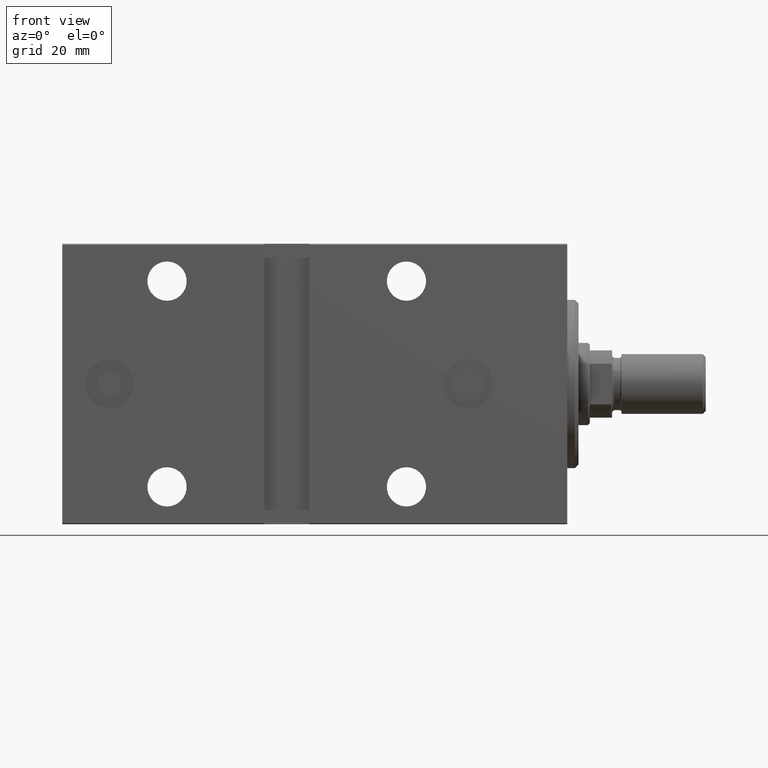
[diagram: clean part render]
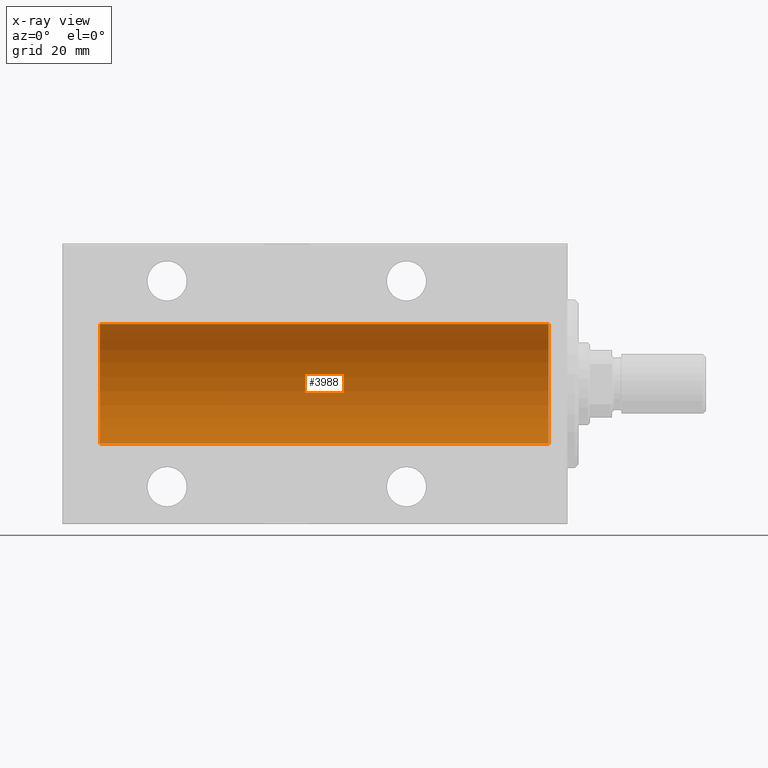
[diagram: x-ray — body ghosted, one internal face saturated and labeled with its STEP entity id]
A machine part, front view, then the same camera in x-ray: the body is ghosted and one INTERNAL B-rep face — a face not visible from any outside direction — is saturated and labeled: STEP entity #3988.
In plain terms, the highlighted cylindrical surface (partial cylindrical patch) has radius 16 mm, axis along (1, 0, -0).
Its self-contained STEP definition (entity closure, byte-faithful):
#444 = EDGE_CURVE ( 'NONE', #43288, #31007, #19442, .T. ) ;
#580 = EDGE_LOOP ( 'NONE', ( #4627, #18999, #40880, #35549 ) ) ;
#602 = VERTEX_POINT ( 'NONE', #18225 ) ;
#3988 = ADVANCED_FACE ( 'NONE', ( #16061 ), #19343, .F. ) ;
#4627 = ORIENTED_EDGE ( 'NONE', *, *, #28313, .F. ) ;
#5176 = CARTESIAN_POINT ( 'NONE',  ( 125.0000000000000000, 1.959434878635765131E-15, -16.00000000000000000 ) ) ;
#5550 = CARTESIAN_POINT ( 'NONE',  ( 125.0000000000000000, 0.000000000000000000, 0.000000000000000000 ) ) ;
#7938 = EDGE_CURVE ( 'NONE', #602, #43288, #38445, .T. ) ;
#10088 = CARTESIAN_POINT ( 'NONE',  ( 5.000000000000004441, 0.000000000000000000, 16.00000000000000000 ) ) ;
#11247 = EDGE_CURVE ( 'NONE', #14614, #31007, #19021, .T. ) ;
#11856 = CIRCLE ( 'NONE', #37029, 16.00000000000000000 ) ;
#12557 = DIRECTION ( 'NONE',  ( -1.000000000000000000, 0.000000000000000000, 0.000000000000000000 ) ) ;
#14614 = VERTEX_POINT ( 'NONE', #39159 ) ;
#15258 = DIRECTION ( 'NONE',  ( -1.000000000000000000, -0.000000000000000000, -0.000000000000000000 ) ) ;
#16061 = FACE_OUTER_BOUND ( 'NONE', #580, .T. ) ;
#17349 = AXIS2_PLACEMENT_3D ( 'NONE', #28119, #35536, #38602 ) ;
#18225 = CARTESIAN_POINT ( 'NONE',  ( 125.0000000000000000, 1.959434878635765131E-15, -16.00000000000000000 ) ) ;
#18910 = DIRECTION ( 'NONE',  ( 0.000000000000000000, 0.000000000000000000, 1.000000000000000000 ) ) ;
#18999 = ORIENTED_EDGE ( 'NONE', *, *, #7938, .T. ) ;
#19021 = LINE ( 'NONE', #28866, #29714 ) ;
#19343 = CYLINDRICAL_SURFACE ( 'NONE', #43282, 16.00000000000000000 ) ;
#19442 = CIRCLE ( 'NONE', #17349, 16.00000000000000000 ) ;
#20895 = CARTESIAN_POINT ( 'NONE',  ( 5.000000000000004441, 1.959434878635765131E-15, -16.00000000000000000 ) ) ;
#23498 = CARTESIAN_POINT ( 'NONE',  ( 125.0000000000000000, 0.000000000000000000, 0.000000000000000000 ) ) ;
#26131 = DIRECTION ( 'NONE',  ( 0.000000000000000000, 0.000000000000000000, 1.000000000000000000 ) ) ;
#28119 = CARTESIAN_POINT ( 'NONE',  ( 5.000000000000004441, 0.000000000000000000, 0.000000000000000000 ) ) ;
#28313 = EDGE_CURVE ( 'NONE', #602, #14614, #11856, .T. ) ;
#28866 = CARTESIAN_POINT ( 'NONE',  ( 125.0000000000000000, 0.000000000000000000, 16.00000000000000000 ) ) ;
#29714 = VECTOR ( 'NONE', #38926, 1000.000000000000000 ) ;
#31007 = VERTEX_POINT ( 'NONE', #10088 ) ;
#32253 = DIRECTION ( 'NONE',  ( -1.000000000000000000, -0.000000000000000000, -0.000000000000000000 ) ) ;
#35536 = DIRECTION ( 'NONE',  ( -1.000000000000000000, 0.000000000000000000, 0.000000000000000000 ) ) ;
#35549 = ORIENTED_EDGE ( 'NONE', *, *, #11247, .F. ) ;
#37029 = AXIS2_PLACEMENT_3D ( 'NONE', #23498, #12557, #26131 ) ;
#38445 = LINE ( 'NONE', #5176, #40821 ) ;
#38602 = DIRECTION ( 'NONE',  ( 0.000000000000000000, 0.000000000000000000, 1.000000000000000000 ) ) ;
#38926 = DIRECTION ( 'NONE',  ( -1.000000000000000000, -0.000000000000000000, -0.000000000000000000 ) ) ;
#39159 = CARTESIAN_POINT ( 'NONE',  ( 125.0000000000000000, 0.000000000000000000, 16.00000000000000000 ) ) ;
#40821 = VECTOR ( 'NONE', #15258, 1000.000000000000000 ) ;
#40880 = ORIENTED_EDGE ( 'NONE', *, *, #444, .T. ) ;
#43282 = AXIS2_PLACEMENT_3D ( 'NONE', #5550, #32253, #18910 ) ;
#43288 = VERTEX_POINT ( 'NONE', #20895 ) ;